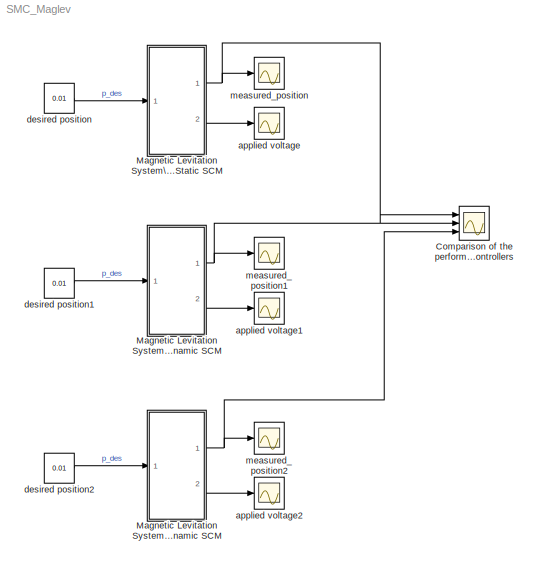
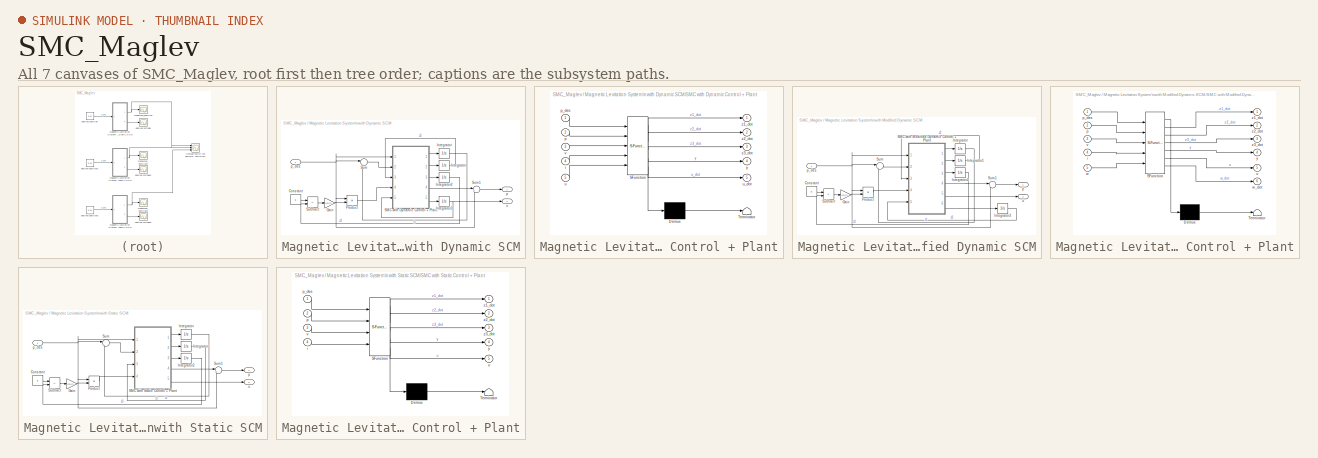
[diagram: thumbnail index - all 7 canvases of the model, root first then tree order]
MODEL SMC_Maglev
KIND model
BLOCK [Scope] Comparison of the performance\nof the 3 Controllers
  Floating = off
  NumInputPorts = 3
  Ports = [3]
  SID = 60
  ScopeSpecificationString = Simulink.scopes.TimeScopeBlockCfg('CurrentConfiguration', extmgr.ConfigurationSet(extmgr.Configuration('Core','General UI',true),extmgr.Configuration('Core','Source UI',true),extmgr.Configuration('Sources','WiredSimulink',true,'DataLoggingVariableName','ScopeData6'),extmgr.Configuration('Visuals','Time Domain',true,'SerializedDisplays',{struct('MinYLimReal','0.00833','MaxYLimReal','0.01907','YLabe...<+1581ch>
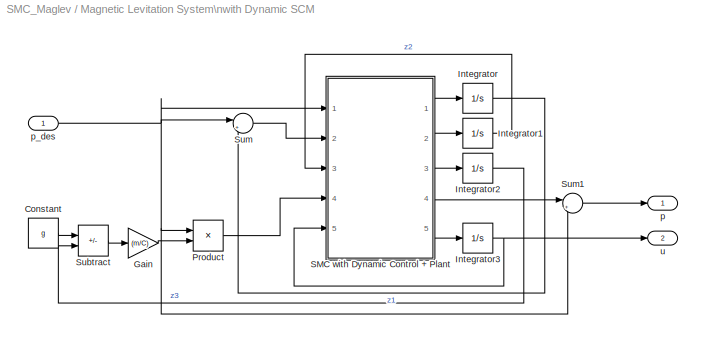
BLOCK [SubSystem] Magnetic Levitation System\nwith Dynamic SCM
  Ports = [1, 2]
  RequestExecContextInheritance = off
  SID = 24
BLOCK [Constant] Magnetic Levitation System\nwith Dynamic SCM/Constant
  SID = 26
  Value = g
BLOCK [Gain] Magnetic Levitation System\nwith Dynamic SCM/Gain
  Gain = (m/C)
  SID = 27
BLOCK [Integrator] Magnetic Levitation System\nwith Dynamic SCM/Integrator
  InitialCondition = 0.008
  Ports = [1, 1]
  SID = 28
BLOCK [Integrator] Magnetic Levitation System\nwith Dynamic SCM/Integrator1
  Ports = [1, 1]
  SID = 29
BLOCK [Integrator] Magnetic Levitation System\nwith Dynamic SCM/Integrator2
  InitialCondition = 9
  Ports = [1, 1]
  SID = 30
BLOCK [Integrator] Magnetic Levitation System\nwith Dynamic SCM/Integrator3
  InitialCondition = 20
  Ports = [1, 1]
  SID = 41
BLOCK [Product] Magnetic Levitation System\nwith Dynamic SCM/Product
  Ports = [2, 1]
  SID = 31
BLOCK [SubSystem] Magnetic Levitation System\nwith Dynamic SCM/SMC with Dynamic Control + Plant
  ErrorFcn = Stateflow.Translate.translate
  PermitHierarchicalResolution = ExplicitOnly
  Ports = [5, 5]
  RequestExecContextInheritance = off
  SFBlockType = MATLAB Function
  SID = 32
  TreatAsAtomicUnit = on
BLOCK [Demux] Magnetic Levitation System\nwith Dynamic SCM/SMC with Dynamic Control + Plant/ Demux 
  Outputs = 1
  Ports = [1, 1]
  SID = 32::20
BLOCK [S-Function] Magnetic Levitation System\nwith Dynamic SCM/SMC with Dynamic Control + Plant/ SFunction 
  EnableBusSupport = on
  FunctionName = sf_sfun
  PortCounts = [5 6]
  Ports = [5, 6]
  SFcnIsStateOwnerBlock = off
  SFunctionDeploymentMode = off
  SID = 32::19
  Tag = Stateflow S-Function SMC_Maglev 1
BLOCK [Terminator] Magnetic Levitation System\nwith Dynamic SCM/SMC with Dynamic Control + Plant/ Terminator 
  SID = 32::21
BLOCK [Inport] Magnetic Levitation System\nwith Dynamic SCM/SMC with Dynamic Control + Plant/i
  Port = 4
  SID = 32::23
BLOCK [Inport] Magnetic Levitation System\nwith Dynamic SCM/SMC with Dynamic Control + Plant/p
  Port = 2
  SID = 32::1
BLOCK [Inport] Magnetic Levitation System\nwith Dynamic SCM/SMC with Dynamic Control + Plant/p_des
  SID = 32::28
BLOCK [Inport] Magnetic Levitation System\nwith Dynamic SCM/SMC with Dynamic Control + Plant/u
  Port = 5
  SID = 32::29
BLOCK [Outport] Magnetic Levitation System\nwith Dynamic SCM/SMC with Dynamic Control + Plant/u_dot
  Port = 5
  SID = 32::27
BLOCK [Inport] Magnetic Levitation System\nwith Dynamic SCM/SMC with Dynamic Control + Plant/v
  Port = 3
  SID = 32::22
BLOCK [Outport] Magnetic Levitation System\nwith Dynamic SCM/SMC with Dynamic Control + Plant/y
  Port = 4
  SID = 32::5
BLOCK [Outport] Magnetic Levitation System\nwith Dynamic SCM/SMC with Dynamic Control + Plant/z1_dot
  SID = 32::24
BLOCK [Outport] Magnetic Levitation System\nwith Dynamic SCM/SMC with Dynamic Control + Plant/z2_dot
  Port = 2
  SID = 32::25
BLOCK [Outport] Magnetic Levitation System\nwith Dynamic SCM/SMC with Dynamic Control + Plant/z3_dot
  Port = 3
  SID = 32::26
BLOCK [Sum] Magnetic Levitation System\nwith Dynamic SCM/Subtract
  IconShape = rectangular
  Inputs = +-
  Ports = [2, 1]
  SID = 33
BLOCK [Sum] Magnetic Levitation System\nwith Dynamic SCM/Sum
  Inputs = |++
  Ports = [2, 1]
  SID = 34
BLOCK [Sum] Magnetic Levitation System\nwith Dynamic SCM/Sum1
  Inputs = |++
  Ports = [2, 1]
  SID = 35
BLOCK [Outport] Magnetic Levitation System\nwith Dynamic SCM/p
  SID = 36
BLOCK [Inport] Magnetic Levitation System\nwith Dynamic SCM/p_des
  SID = 25
BLOCK [Outport] Magnetic Levitation System\nwith Dynamic SCM/u
  Port = 2
  SID = 37
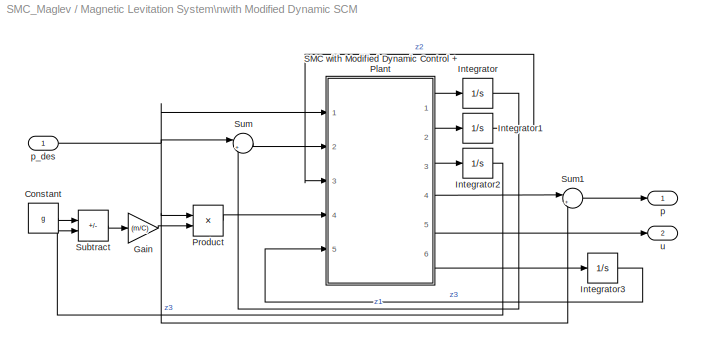
BLOCK [SubSystem] Magnetic Levitation System\nwith Modified Dynamic SCM
  Ports = [1, 2]
  RequestExecContextInheritance = off
  SID = 42
BLOCK [Constant] Magnetic Levitation System\nwith Modified Dynamic SCM/Constant
  SID = 44
  Value = g
BLOCK [Gain] Magnetic Levitation System\nwith Modified Dynamic SCM/Gain
  Gain = (m/C)
  SID = 45
BLOCK [Integrator] Magnetic Levitation System\nwith Modified Dynamic SCM/Integrator
  InitialCondition = 0.008
  Ports = [1, 1]
  SID = 46
BLOCK [Integrator] Magnetic Levitation System\nwith Modified Dynamic SCM/Integrator1
  Ports = [1, 1]
  SID = 47
BLOCK [Integrator] Magnetic Levitation System\nwith Modified Dynamic SCM/Integrator2
  InitialCondition = 9
  Ports = [1, 1]
  SID = 48
BLOCK [Integrator] Magnetic Levitation System\nwith Modified Dynamic SCM/Integrator3
  Ports = [1, 1]
  SID = 59
BLOCK [Product] Magnetic Levitation System\nwith Modified Dynamic SCM/Product
  Ports = [2, 1]
  SID = 49
BLOCK [SubSystem] Magnetic Levitation System\nwith Modified Dynamic SCM/SMC with Modified Dynamic Control + Plant
  ErrorFcn = Stateflow.Translate.translate
  PermitHierarchicalResolution = ExplicitOnly
  Ports = [5, 6]
  RequestExecContextInheritance = off
  SFBlockType = MATLAB Function
  SID = 50
  TreatAsAtomicUnit = on
BLOCK [Demux] Magnetic Levitation System\nwith Modified Dynamic SCM/SMC with Modified Dynamic Control + Plant/ Demux 
  Outputs = 1
  Ports = [1, 1]
  SID = 50::20
BLOCK [S-Function] Magnetic Levitation System\nwith Modified Dynamic SCM/SMC with Modified Dynamic Control + Plant/ SFunction 
  EnableBusSupport = on
  FunctionName = sf_sfun
  PortCounts = [5 7]
  Ports = [5, 7]
  SFcnIsStateOwnerBlock = off
  SFunctionDeploymentMode = off
  SID = 50::19
  Tag = Stateflow S-Function SMC_Maglev 3
BLOCK [Terminator] Magnetic Levitation System\nwith Modified Dynamic SCM/SMC with Modified Dynamic Control + Plant/ Terminator 
  SID = 50::21
BLOCK [Inport] Magnetic Levitation System\nwith Modified Dynamic SCM/SMC with Modified Dynamic Control + Plant/i
  Port = 4
  SID = 50::23
BLOCK [Inport] Magnetic Levitation System\nwith Modified Dynamic SCM/SMC with Modified Dynamic Control + Plant/p
  Port = 2
  SID = 50::1
BLOCK [Inport] Magnetic Levitation System\nwith Modified Dynamic SCM/SMC with Modified Dynamic Control + Plant/p_des
  SID = 50::28
BLOCK [Outport] Magnetic Levitation System\nwith Modified Dynamic SCM/SMC with Modified Dynamic Control + Plant/u
  Port = 5
  SID = 50::27
BLOCK [Inport] Magnetic Levitation System\nwith Modified Dynamic SCM/SMC with Modified Dynamic Control + Plant/v
  Port = 3
  SID = 50::22
BLOCK [Inport] Magnetic Levitation System\nwith Modified Dynamic SCM/SMC with Modified Dynamic Control + Plant/w
  Port = 5
  SID = 50::29
BLOCK [Outport] Magnetic Levitation System\nwith Modified Dynamic SCM/SMC with Modified Dynamic Control + Plant/w_dot
  Port = 6
  SID = 50::30
BLOCK [Outport] Magnetic Levitation System\nwith Modified Dynamic SCM/SMC with Modified Dynamic Control + Plant/y
  Port = 4
  SID = 50::5
BLOCK [Outport] Magnetic Levitation System\nwith Modified Dynamic SCM/SMC with Modified Dynamic Control + Plant/z1_dot
  SID = 50::24
BLOCK [Outport] Magnetic Levitation System\nwith Modified Dynamic SCM/SMC with Modified Dynamic Control + Plant/z2_dot
  Port = 2
  SID = 50::25
BLOCK [Outport] Magnetic Levitation System\nwith Modified Dynamic SCM/SMC with Modified Dynamic Control + Plant/z3_dot
  Port = 3
  SID = 50::26
BLOCK [Sum] Magnetic Levitation System\nwith Modified Dynamic SCM/Subtract
  IconShape = rectangular
  Inputs = +-
  Ports = [2, 1]
  SID = 51
BLOCK [Sum] Magnetic Levitation System\nwith Modified Dynamic SCM/Sum
  Inputs = |++
  Ports = [2, 1]
  SID = 52
BLOCK [Sum] Magnetic Levitation System\nwith Modified Dynamic SCM/Sum1
  Inputs = |++
  Ports = [2, 1]
  SID = 53
BLOCK [Outport] Magnetic Levitation System\nwith Modified Dynamic SCM/p
  SID = 54
BLOCK [Inport] Magnetic Levitation System\nwith Modified Dynamic SCM/p_des
  SID = 43
BLOCK [Outport] Magnetic Levitation System\nwith Modified Dynamic SCM/u
  Port = 2
  SID = 55
BLOCK [SubSystem] Magnetic Levitation System\nwith Static SCM
  Ports = [1, 2]
  RequestExecContextInheritance = off
  SID = 19
BLOCK [Constant] Magnetic Levitation System\nwith Static SCM/Constant
  SID = 10
  Value = g
BLOCK [Gain] Magnetic Levitation System\nwith Static SCM/Gain
  Gain = (m/C)
  SID = 8
BLOCK [Integrator] Magnetic Levitation System\nwith Static SCM/Integrator
  InitialCondition = 0.008
  Ports = [1, 1]
  SID = 2
BLOCK [Integrator] Magnetic Levitation System\nwith Static SCM/Integrator1
  Ports = [1, 1]
  SID = 3
BLOCK [Integrator] Magnetic Levitation System\nwith Static SCM/Integrator2
  InitialCondition = 9
  Ports = [1, 1]
  SID = 4
BLOCK [Product] Magnetic Levitation System\nwith Static SCM/Product
  Ports = [2, 1]
  SID = 12
BLOCK [SubSystem] Magnetic Levitation System\nwith Static SCM/SMC with Static Control + Plant
  ErrorFcn = Stateflow.Translate.translate
  PermitHierarchicalResolution = ExplicitOnly
  Ports = [4, 5]
  RequestExecContextInheritance = off
  SFBlockType = MATLAB Function
  SID = 1
  TreatAsAtomicUnit = on
BLOCK [Demux] Magnetic Levitation System\nwith Static SCM/SMC with Static Control + Plant/ Demux 
  Outputs = 1
  Ports = [1, 1]
  SID = 1::20
BLOCK [S-Function] Magnetic Levitation System\nwith Static SCM/SMC with Static Control + Plant/ SFunction 
  EnableBusSupport = on
  FunctionName = sf_sfun
  PortCounts = [4 6]
  Ports = [4, 6]
  SFcnIsStateOwnerBlock = off
  SFunctionDeploymentMode = off
  SID = 1::19
  Tag = Stateflow S-Function SMC_Maglev 2
BLOCK [Terminator] Magnetic Levitation System\nwith Static SCM/SMC with Static Control + Plant/ Terminator 
  SID = 1::21
BLOCK [Inport] Magnetic Levitation System\nwith Static SCM/SMC with Static Control + Plant/i
  Port = 4
  SID = 1::23
BLOCK [Inport] Magnetic Levitation System\nwith Static SCM/SMC with Static Control + Plant/p
  Port = 2
  SID = 1::1
BLOCK [Inport] Magnetic Levitation System\nwith Static SCM/SMC with Static Control + Plant/p_des
  SID = 1::28
BLOCK [Outport] Magnetic Levitation System\nwith Static SCM/SMC with Static Control + Plant/u
  Port = 5
  SID = 1::27
BLOCK [Inport] Magnetic Levitation System\nwith Static SCM/SMC with Static Control + Plant/v
  Port = 3
  SID = 1::22
BLOCK [Outport] Magnetic Levitation System\nwith Static SCM/SMC with Static Control + Plant/y
  Port = 4
  SID = 1::5
BLOCK [Outport] Magnetic Levitation System\nwith Static SCM/SMC with Static Control + Plant/z1_dot
  SID = 1::24
BLOCK [Outport] Magnetic Levitation System\nwith Static SCM/SMC with Static Control + Plant/z2_dot
  Port = 2
  SID = 1::25
BLOCK [Outport] Magnetic Levitation System\nwith Static SCM/SMC with Static Control + Plant/z3_dot
  Port = 3
  SID = 1::26
BLOCK [Sum] Magnetic Levitation System\nwith Static SCM/Subtract
  IconShape = rectangular
  Inputs = +-
  Ports = [2, 1]
  SID = 9
BLOCK [Sum] Magnetic Levitation System\nwith Static SCM/Sum
  Inputs = |++
  Ports = [2, 1]
  SID = 6
BLOCK [Sum] Magnetic Levitation System\nwith Static SCM/Sum1
  Inputs = |++
  Ports = [2, 1]
  SID = 15
BLOCK [Outport] Magnetic Levitation System\nwith Static SCM/p
  SID = 21
BLOCK [Inport] Magnetic Levitation System\nwith Static SCM/p_des
  SID = 20
BLOCK [Outport] Magnetic Levitation System\nwith Static SCM/u
  Port = 2
  SID = 22
BLOCK [Scope] applied voltage
  Floating = off
  NumInputPorts = 1
  Ports = [1]
  SID = 14
  ScopeSpecificationString = Simulink.scopes.TimeScopeBlockCfg('CurrentConfiguration', extmgr.ConfigurationSet(extmgr.Configuration('Core','General UI',true),extmgr.Configuration('Core','Source UI',true),extmgr.Configuration('Sources','WiredSimulink',true,'DataLoggingVariableName','ScopeData1'),extmgr.Configuration('Visuals','Time Domain',true,'SerializedDisplays',{struct('MinYLimReal','2.73557','MaxYLimReal','20.31509','YLab...<+1477ch>
BLOCK [Scope] applied voltage1
  Floating = off
  NumInputPorts = 1
  Ports = [1]
  SID = 38
  ScopeSpecificationString = Simulink.scopes.TimeScopeBlockCfg('CurrentConfiguration', extmgr.ConfigurationSet(extmgr.Configuration('Core','General UI',true),extmgr.Configuration('Core','Source UI',true),extmgr.Configuration('Sources','WiredSimulink',true,'DataLoggingVariableName','ScopeData2'),extmgr.Configuration('Visuals','Time Domain',true,'SerializedDisplays',{struct('MinYLimReal','6.69412','MaxYLimReal','21.47843','YLab...<+1450ch>
BLOCK [Scope] applied voltage2
  Floating = off
  NumInputPorts = 1
  Ports = [1]
  SID = 56
  ScopeSpecificationString = Simulink.scopes.TimeScopeBlockCfg('CurrentConfiguration', extmgr.ConfigurationSet(extmgr.Configuration('Core','General UI',true),extmgr.Configuration('Core','Source UI',true),extmgr.Configuration('Sources','WiredSimulink',true,'DataLoggingVariableName','ScopeData4'),extmgr.Configuration('Visuals','Time Domain',true,'SerializedDisplays',{struct('MinYLimReal','7.17984','MaxYLimReal','17.53926','YLab...<+1459ch>
BLOCK [Constant] desired position
  SID = 13
  Value = 0.01
BLOCK [Constant] desired position1
  SID = 39
  Value = 0.01
BLOCK [Constant] desired position2
  SID = 57
  Value = 0.01
BLOCK [Scope] measured_position
  Floating = off
  NumInputPorts = 1
  Ports = [1]
  SID = 5
  ScopeSpecificationString = Simulink.scopes.TimeScopeBlockCfg('CurrentConfiguration', extmgr.ConfigurationSet(extmgr.Configuration('Core','General UI',true),extmgr.Configuration('Core','Source UI',true),extmgr.Configuration('Sources','WiredSimulink',true),extmgr.Configuration('Visuals','Time Domain',true,'SerializedDisplays',{struct('MinYLimReal','0.00833','MaxYLimReal','0.01907','YLabelReal','','MinYLimMag','0.00833','MaxYL...<+1439ch>
BLOCK [Scope] measured_position1
  Floating = off
  NumInputPorts = 1
  Ports = [1]
  SID = 40
  ScopeSpecificationString = Simulink.scopes.TimeScopeBlockCfg('CurrentConfiguration', extmgr.ConfigurationSet(extmgr.Configuration('Core','General UI',true),extmgr.Configuration('Core','Source UI',true),extmgr.Configuration('Sources','WiredSimulink',true,'DataLoggingVariableName','ScopeData3'),extmgr.Configuration('Visuals','Time Domain',true,'SerializedDisplays',{struct('MinYLimReal','0.00894','MaxYLimReal','0.01901','YLabe...<+1755ch>
BLOCK [Scope] measured_position2
  Floating = off
  NumInputPorts = 1
  Ports = [1]
  SID = 58
  ScopeSpecificationString = Simulink.scopes.TimeScopeBlockCfg('CurrentConfiguration', extmgr.ConfigurationSet(extmgr.Configuration('Core','General UI',true),extmgr.Configuration('Core','Source UI',true),extmgr.Configuration('Sources','WiredSimulink',true,'DataLoggingVariableName','ScopeData5'),extmgr.Configuration('Visuals','Time Domain',true,'SerializedDisplays',{struct('MinYLimReal','0.00895','MaxYLimReal','0.01901','YLabe...<+1731ch>
LINE Magnetic Levitation System\nwith Dynamic SCM/Constant:1 -> Magnetic Levitation System\nwith Dynamic SCM/Subtract:1
LINE Magnetic Levitation System\nwith Dynamic SCM/Gain:1 -> Magnetic Levitation System\nwith Dynamic SCM/Product:2
LINE Magnetic Levitation System\nwith Dynamic SCM/Integrator1:1 -> Magnetic Levitation System\nwith Dynamic SCM/SMC with Dynamic Control + Plant:3
LINE Magnetic Levitation System\nwith Dynamic SCM/Integrator2:1 -> Magnetic Levitation System\nwith Dynamic SCM/Subtract:2
NET Magnetic Levitation System\nwith Dynamic SCM/Integrator3:1 -> Magnetic Levitation System\nwith Dynamic SCM/SMC with Dynamic Control + Plant:5, Magnetic Levitation System\nwith Dynamic SCM/u:1
LINE Magnetic Levitation System\nwith Dynamic SCM/Integrator:1 -> Magnetic Levitation System\nwith Dynamic SCM/Sum:2
LINE Magnetic Levitation System\nwith Dynamic SCM/Product:1 -> Magnetic Levitation System\nwith Dynamic SCM/SMC with Dynamic Control + Plant:4
LINE Magnetic Levitation System\nwith Dynamic SCM/SMC with Dynamic Control + Plant/ Demux :1 -> Magnetic Levitation System\nwith Dynamic SCM/SMC with Dynamic Control + Plant/ Terminator :1
LINE Magnetic Levitation System\nwith Dynamic SCM/SMC with Dynamic Control + Plant/ SFunction :1 -> Magnetic Levitation System\nwith Dynamic SCM/SMC with Dynamic Control + Plant/ Demux :1
LINE Magnetic Levitation System\nwith Dynamic SCM/SMC with Dynamic Control + Plant/ SFunction :2 -> Magnetic Levitation System\nwith Dynamic SCM/SMC with Dynamic Control + Plant/z1_dot:1
LINE Magnetic Levitation System\nwith Dynamic SCM/SMC with Dynamic Control + Plant/ SFunction :3 -> Magnetic Levitation System\nwith Dynamic SCM/SMC with Dynamic Control + Plant/z2_dot:1
LINE Magnetic Levitation System\nwith Dynamic SCM/SMC with Dynamic Control + Plant/ SFunction :4 -> Magnetic Levitation System\nwith Dynamic SCM/SMC with Dynamic Control + Plant/z3_dot:1
LINE Magnetic Levitation System\nwith Dynamic SCM/SMC with Dynamic Control + Plant/ SFunction :5 -> Magnetic Levitation System\nwith Dynamic SCM/SMC with Dynamic Control + Plant/y:1
LINE Magnetic Levitation System\nwith Dynamic SCM/SMC with Dynamic Control + Plant/ SFunction :6 -> Magnetic Levitation System\nwith Dynamic SCM/SMC with Dynamic Control + Plant/u_dot:1
LINE Magnetic Levitation System\nwith Dynamic SCM/SMC with Dynamic Control + Plant/i:1 -> Magnetic Levitation System\nwith Dynamic SCM/SMC with Dynamic Control + Plant/ SFunction :4
LINE Magnetic Levitation System\nwith Dynamic SCM/SMC with Dynamic Control + Plant/p:1 -> Magnetic Levitation System\nwith Dynamic SCM/SMC with Dynamic Control + Plant/ SFunction :2
LINE Magnetic Levitation System\nwith Dynamic SCM/SMC with Dynamic Control + Plant/p_des:1 -> Magnetic Levitation System\nwith Dynamic SCM/SMC with Dynamic Control + Plant/ SFunction :1
LINE Magnetic Levitation System\nwith Dynamic SCM/SMC with Dynamic Control + Plant/u:1 -> Magnetic Levitation System\nwith Dynamic SCM/SMC with Dynamic Control + Plant/ SFunction :5
LINE Magnetic Levitation System\nwith Dynamic SCM/SMC with Dynamic Control + Plant/v:1 -> Magnetic Levitation System\nwith Dynamic SCM/SMC with Dynamic Control + Plant/ SFunction :3
LINE Magnetic Levitation System\nwith Dynamic SCM/SMC with Dynamic Control + Plant:1 -> Magnetic Levitation System\nwith Dynamic SCM/Integrator:1
LINE Magnetic Levitation System\nwith Dynamic SCM/SMC with Dynamic Control + Plant:2 -> Magnetic Levitation System\nwith Dynamic SCM/Integrator1:1
LINE Magnetic Levitation System\nwith Dynamic SCM/SMC with Dynamic Control + Plant:3 -> Magnetic Levitation System\nwith Dynamic SCM/Integrator2:1
LINE Magnetic Levitation System\nwith Dynamic SCM/SMC with Dynamic Control + Plant:4 -> Magnetic Levitation System\nwith Dynamic SCM/Sum1:1
LINE Magnetic Levitation System\nwith Dynamic SCM/SMC with Dynamic Control + Plant:5 -> Magnetic Levitation System\nwith Dynamic SCM/Integrator3:1
LINE Magnetic Levitation System\nwith Dynamic SCM/Subtract:1 -> Magnetic Levitation System\nwith Dynamic SCM/Gain:1
LINE Magnetic Levitation System\nwith Dynamic SCM/Sum1:1 -> Magnetic Levitation System\nwith Dynamic SCM/p:1
LINE Magnetic Levitation System\nwith Dynamic SCM/Sum:1 -> Magnetic Levitation System\nwith Dynamic SCM/SMC with Dynamic Control + Plant:2
NET Magnetic Levitation System\nwith Dynamic SCM/p_des:1 -> Magnetic Levitation System\nwith Dynamic SCM/Product:1, Magnetic Levitation System\nwith Dynamic SCM/SMC with Dynamic Control + Plant:1, Magnetic Levitation System\nwith Dynamic SCM/Sum1:2, Magnetic Levitation System\nwith Dynamic SCM/Sum:1
NET Magnetic Levitation System\nwith Dynamic SCM:1 -> Comparison of the performance\nof the 3 Controllers:2, measured_position1:1
LINE Magnetic Levitation System\nwith Dynamic SCM:2 -> applied voltage1:1
LINE Magnetic Levitation System\nwith Modified Dynamic SCM/Constant:1 -> Magnetic Levitation System\nwith Modified Dynamic SCM/Subtract:1
LINE Magnetic Levitation System\nwith Modified Dynamic SCM/Gain:1 -> Magnetic Levitation System\nwith Modified Dynamic SCM/Product:2
LINE Magnetic Levitation System\nwith Modified Dynamic SCM/Integrator1:1 -> Magnetic Levitation System\nwith Modified Dynamic SCM/SMC with Modified Dynamic Control + Plant:3
LINE Magnetic Levitation System\nwith Modified Dynamic SCM/Integrator2:1 -> Magnetic Levitation System\nwith Modified Dynamic SCM/Subtract:2
LINE Magnetic Levitation System\nwith Modified Dynamic SCM/Integrator3:1 -> Magnetic Levitation System\nwith Modified Dynamic SCM/SMC with Modified Dynamic Control + Plant:5
LINE Magnetic Levitation System\nwith Modified Dynamic SCM/Integrator:1 -> Magnetic Levitation System\nwith Modified Dynamic SCM/Sum:2
LINE Magnetic Levitation System\nwith Modified Dynamic SCM/Product:1 -> Magnetic Levitation System\nwith Modified Dynamic SCM/SMC with Modified Dynamic Control + Plant:4
LINE Magnetic Levitation System\nwith Modified Dynamic SCM/SMC with Modified Dynamic Control + Plant/ Demux :1 -> Magnetic Levitation System\nwith Modified Dynamic SCM/SMC with Modified Dynamic Control + Plant/ Terminator :1
LINE Magnetic Levitation System\nwith Modified Dynamic SCM/SMC with Modified Dynamic Control + Plant/ SFunction :1 -> Magnetic Levitation System\nwith Modified Dynamic SCM/SMC with Modified Dynamic Control + Plant/ Demux :1
LINE Magnetic Levitation System\nwith Modified Dynamic SCM/SMC with Modified Dynamic Control + Plant/ SFunction :2 -> Magnetic Levitation System\nwith Modified Dynamic SCM/SMC with Modified Dynamic Control + Plant/z1_dot:1
LINE Magnetic Levitation System\nwith Modified Dynamic SCM/SMC with Modified Dynamic Control + Plant/ SFunction :3 -> Magnetic Levitation System\nwith Modified Dynamic SCM/SMC with Modified Dynamic Control + Plant/z2_dot:1
LINE Magnetic Levitation System\nwith Modified Dynamic SCM/SMC with Modified Dynamic Control + Plant/ SFunction :4 -> Magnetic Levitation System\nwith Modified Dynamic SCM/SMC with Modified Dynamic Control + Plant/z3_dot:1
LINE Magnetic Levitation System\nwith Modified Dynamic SCM/SMC with Modified Dynamic Control + Plant/ SFunction :5 -> Magnetic Levitation System\nwith Modified Dynamic SCM/SMC with Modified Dynamic Control + Plant/y:1
LINE Magnetic Levitation System\nwith Modified Dynamic SCM/SMC with Modified Dynamic Control + Plant/ SFunction :6 -> Magnetic Levitation System\nwith Modified Dynamic SCM/SMC with Modified Dynamic Control + Plant/u:1
LINE Magnetic Levitation System\nwith Modified Dynamic SCM/SMC with Modified Dynamic Control + Plant/ SFunction :7 -> Magnetic Levitation System\nwith Modified Dynamic SCM/SMC with Modified Dynamic Control + Plant/w_dot:1
LINE Magnetic Levitation System\nwith Modified Dynamic SCM/SMC with Modified Dynamic Control + Plant/i:1 -> Magnetic Levitation System\nwith Modified Dynamic SCM/SMC with Modified Dynamic Control + Plant/ SFunction :4
LINE Magnetic Levitation System\nwith Modified Dynamic SCM/SMC with Modified Dynamic Control + Plant/p:1 -> Magnetic Levitation System\nwith Modified Dynamic SCM/SMC with Modified Dynamic Control + Plant/ SFunction :2
LINE Magnetic Levitation System\nwith Modified Dynamic SCM/SMC with Modified Dynamic Control + Plant/p_des:1 -> Magnetic Levitation System\nwith Modified Dynamic SCM/SMC with Modified Dynamic Control + Plant/ SFunction :1
LINE Magnetic Levitation System\nwith Modified Dynamic SCM/SMC with Modified Dynamic Control + Plant/v:1 -> Magnetic Levitation System\nwith Modified Dynamic SCM/SMC with Modified Dynamic Control + Plant/ SFunction :3
LINE Magnetic Levitation System\nwith Modified Dynamic SCM/SMC with Modified Dynamic Control + Plant/w:1 -> Magnetic Levitation System\nwith Modified Dynamic SCM/SMC with Modified Dynamic Control + Plant/ SFunction :5
LINE Magnetic Levitation System\nwith Modified Dynamic SCM/SMC with Modified Dynamic Control + Plant:1 -> Magnetic Levitation System\nwith Modified Dynamic SCM/Integrator:1
LINE Magnetic Levitation System\nwith Modified Dynamic SCM/SMC with Modified Dynamic Control + Plant:2 -> Magnetic Levitation System\nwith Modified Dynamic SCM/Integrator1:1
LINE Magnetic Levitation System\nwith Modified Dynamic SCM/SMC with Modified Dynamic Control + Plant:3 -> Magnetic Levitation System\nwith Modified Dynamic SCM/Integrator2:1
LINE Magnetic Levitation System\nwith Modified Dynamic SCM/SMC with Modified Dynamic Control + Plant:4 -> Magnetic Levitation System\nwith Modified Dynamic SCM/Sum1:1
LINE Magnetic Levitation System\nwith Modified Dynamic SCM/SMC with Modified Dynamic Control + Plant:5 -> Magnetic Levitation System\nwith Modified Dynamic SCM/u:1
LINE Magnetic Levitation System\nwith Modified Dynamic SCM/SMC with Modified Dynamic Control + Plant:6 -> Magnetic Levitation System\nwith Modified Dynamic SCM/Integrator3:1
LINE Magnetic Levitation System\nwith Modified Dynamic SCM/Subtract:1 -> Magnetic Levitation System\nwith Modified Dynamic SCM/Gain:1
LINE Magnetic Levitation System\nwith Modified Dynamic SCM/Sum1:1 -> Magnetic Levitation System\nwith Modified Dynamic SCM/p:1
LINE Magnetic Levitation System\nwith Modified Dynamic SCM/Sum:1 -> Magnetic Levitation System\nwith Modified Dynamic SCM/SMC with Modified Dynamic Control + Plant:2
NET Magnetic Levitation System\nwith Modified Dynamic SCM/p_des:1 -> Magnetic Levitation System\nwith Modified Dynamic SCM/Product:1, Magnetic Levitation System\nwith Modified Dynamic SCM/SMC with Modified Dynamic Control + Plant:1, Magnetic Levitation System\nwith Modified Dynamic SCM/Sum1:2, Magnetic Levitation System\nwith Modified Dynamic SCM/Sum:1
NET Magnetic Levitation System\nwith Modified Dynamic SCM:1 -> Comparison of the performance\nof the 3 Controllers:3, measured_position2:1
LINE Magnetic Levitation System\nwith Modified Dynamic SCM:2 -> applied voltage2:1
LINE Magnetic Levitation System\nwith Static SCM/Constant:1 -> Magnetic Levitation System\nwith Static SCM/Subtract:1
LINE Magnetic Levitation System\nwith Static SCM/Gain:1 -> Magnetic Levitation System\nwith Static SCM/Product:2
LINE Magnetic Levitation System\nwith Static SCM/Integrator1:1 -> Magnetic Levitation System\nwith Static SCM/SMC with Static Control + Plant:3
LINE Magnetic Levitation System\nwith Static SCM/Integrator2:1 -> Magnetic Levitation System\nwith Static SCM/Subtract:2
LINE Magnetic Levitation System\nwith Static SCM/Integrator:1 -> Magnetic Levitation System\nwith Static SCM/Sum:2
LINE Magnetic Levitation System\nwith Static SCM/Product:1 -> Magnetic Levitation System\nwith Static SCM/SMC with Static Control + Plant:4
LINE Magnetic Levitation System\nwith Static SCM/SMC with Static Control + Plant/ Demux :1 -> Magnetic Levitation System\nwith Static SCM/SMC with Static Control + Plant/ Terminator :1
LINE Magnetic Levitation System\nwith Static SCM/SMC with Static Control + Plant/ SFunction :1 -> Magnetic Levitation System\nwith Static SCM/SMC with Static Control + Plant/ Demux :1
LINE Magnetic Levitation System\nwith Static SCM/SMC with Static Control + Plant/ SFunction :2 -> Magnetic Levitation System\nwith Static SCM/SMC with Static Control + Plant/z1_dot:1
LINE Magnetic Levitation System\nwith Static SCM/SMC with Static Control + Plant/ SFunction :3 -> Magnetic Levitation System\nwith Static SCM/SMC with Static Control + Plant/z2_dot:1
LINE Magnetic Levitation System\nwith Static SCM/SMC with Static Control + Plant/ SFunction :4 -> Magnetic Levitation System\nwith Static SCM/SMC with Static Control + Plant/z3_dot:1
LINE Magnetic Levitation System\nwith Static SCM/SMC with Static Control + Plant/ SFunction :5 -> Magnetic Levitation System\nwith Static SCM/SMC with Static Control + Plant/y:1
LINE Magnetic Levitation System\nwith Static SCM/SMC with Static Control + Plant/ SFunction :6 -> Magnetic Levitation System\nwith Static SCM/SMC with Static Control + Plant/u:1
LINE Magnetic Levitation System\nwith Static SCM/SMC with Static Control + Plant/i:1 -> Magnetic Levitation System\nwith Static SCM/SMC with Static Control + Plant/ SFunction :4
LINE Magnetic Levitation System\nwith Static SCM/SMC with Static Control + Plant/p:1 -> Magnetic Levitation System\nwith Static SCM/SMC with Static Control + Plant/ SFunction :2
LINE Magnetic Levitation System\nwith Static SCM/SMC with Static Control + Plant/p_des:1 -> Magnetic Levitation System\nwith Static SCM/SMC with Static Control + Plant/ SFunction :1
LINE Magnetic Levitation System\nwith Static SCM/SMC with Static Control + Plant/v:1 -> Magnetic Levitation System\nwith Static SCM/SMC with Static Control + Plant/ SFunction :3
LINE Magnetic Levitation System\nwith Static SCM/SMC with Static Control + Plant:1 -> Magnetic Levitation System\nwith Static SCM/Integrator:1
LINE Magnetic Levitation System\nwith Static SCM/SMC with Static Control + Plant:2 -> Magnetic Levitation System\nwith Static SCM/Integrator1:1
LINE Magnetic Levitation System\nwith Static SCM/SMC with Static Control + Plant:3 -> Magnetic Levitation System\nwith Static SCM/Integrator2:1
LINE Magnetic Levitation System\nwith Static SCM/SMC with Static Control + Plant:4 -> Magnetic Levitation System\nwith Static SCM/Sum1:1
LINE Magnetic Levitation System\nwith Static SCM/SMC with Static Control + Plant:5 -> Magnetic Levitation System\nwith Static SCM/u:1
LINE Magnetic Levitation System\nwith Static SCM/Subtract:1 -> Magnetic Levitation System\nwith Static SCM/Gain:1
LINE Magnetic Levitation System\nwith Static SCM/Sum1:1 -> Magnetic Levitation System\nwith Static SCM/p:1
LINE Magnetic Levitation System\nwith Static SCM/Sum:1 -> Magnetic Levitation System\nwith Static SCM/SMC with Static Control + Plant:2
NET Magnetic Levitation System\nwith Static SCM/p_des:1 -> Magnetic Levitation System\nwith Static SCM/Product:1, Magnetic Levitation System\nwith Static SCM/SMC with Static Control + Plant:1, Magnetic Levitation System\nwith Static SCM/Sum1:2, Magnetic Levitation System\nwith Static SCM/Sum:1
NET Magnetic Levitation System\nwith Static SCM:1 -> Comparison of the performance\nof the 3 Controllers:1, measured_position:1
LINE Magnetic Levitation System\nwith Static SCM:2 -> applied voltage:1
LINE desired position1:1 -> Magnetic Levitation System\nwith Dynamic SCM:1
LINE desired position2:1 -> Magnetic Levitation System\nwith Modified Dynamic SCM:1
LINE desired position:1 -> Magnetic Levitation System\nwith Static SCM:1
note: NET lines group one-source signal fan-out (src -> all destinations, sorted); 1:1 wires keep LINE
CHART Magnetic Levitation System\nwith Dynamic SCM/SMC with Dynamic Control + Plant states=1 transitions=1
  STATE_LABEL 'eML_blk_kernel()'
CHART Magnetic Levitation System\nwith Static SCM/SMC with Static Control + Plant states=1 transitions=1
  STATE_LABEL 'eML_blk_kernel()'
CHART Magnetic Levitation System\nwith Modified Dynamic SCM/SMC with Modified Dynamic Control + Plant states=1 transitions=1
  STATE_LABEL 'eML_blk_kernel()'
